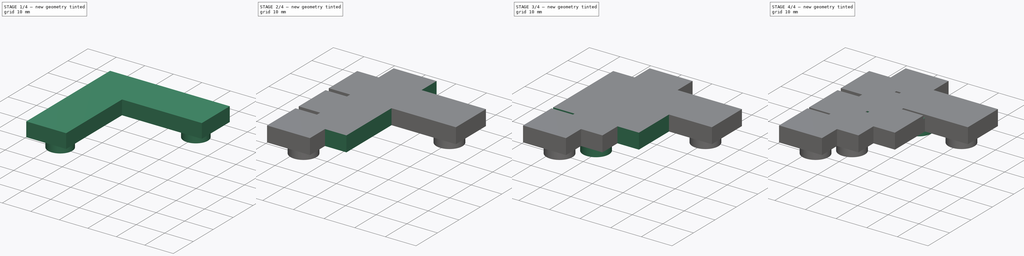
[diagram: build sequence overview — one tinted view per stage of 4, left to right]
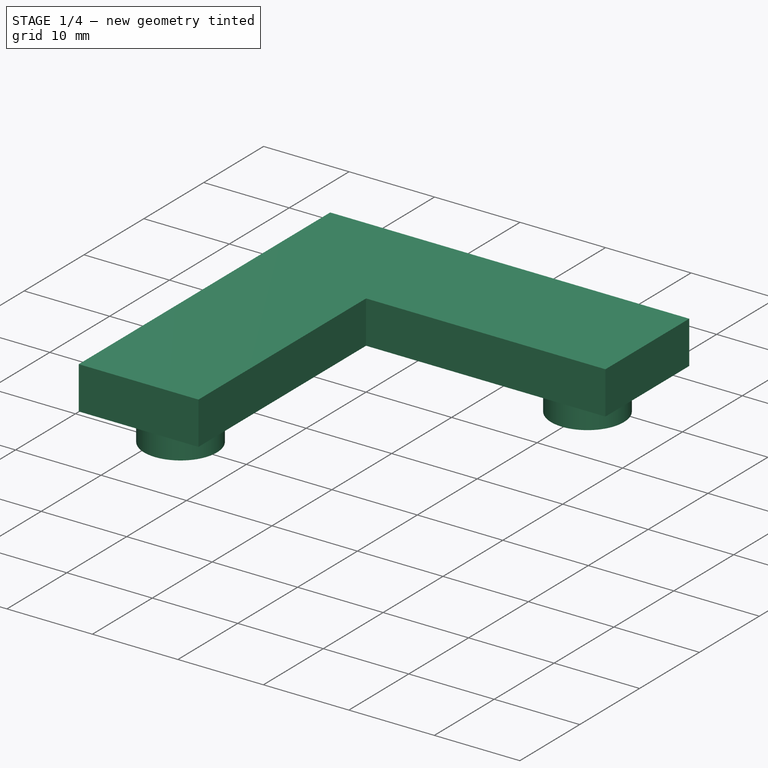
[diagram: stage 1 of 4 — iso view after this stage's code; geometry added in this stage tinted green]
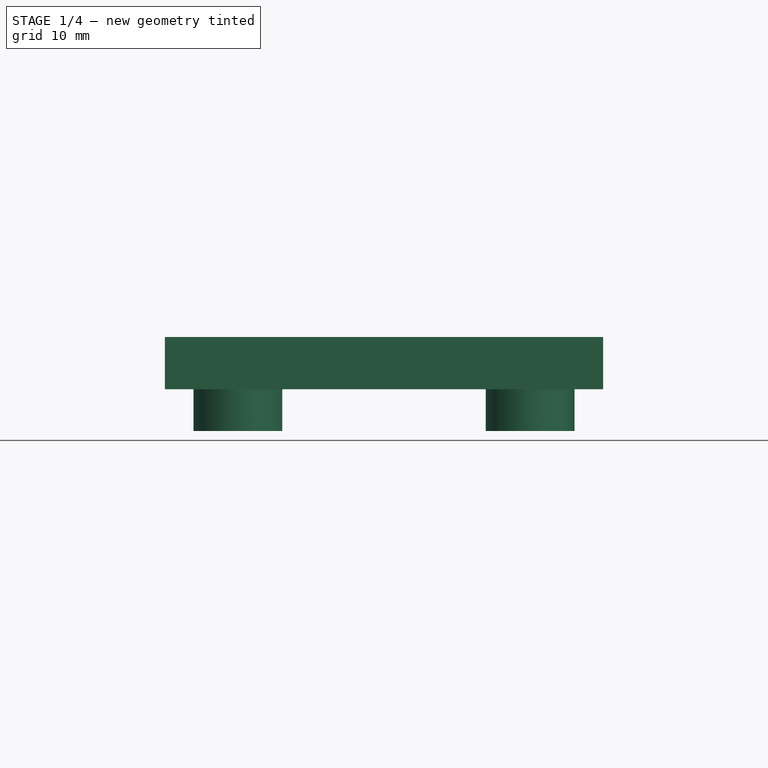
[diagram: stage 1 of 4 — front view after this stage's code; geometry added in this stage tinted green]
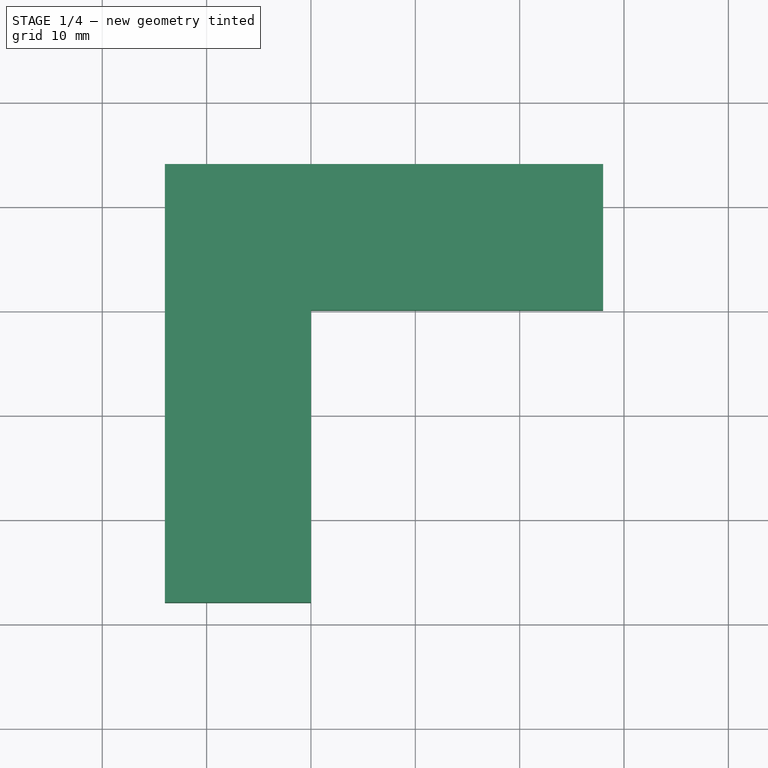
[diagram: stage 1 of 4 — top view after this stage's code; geometry added in this stage tinted green]
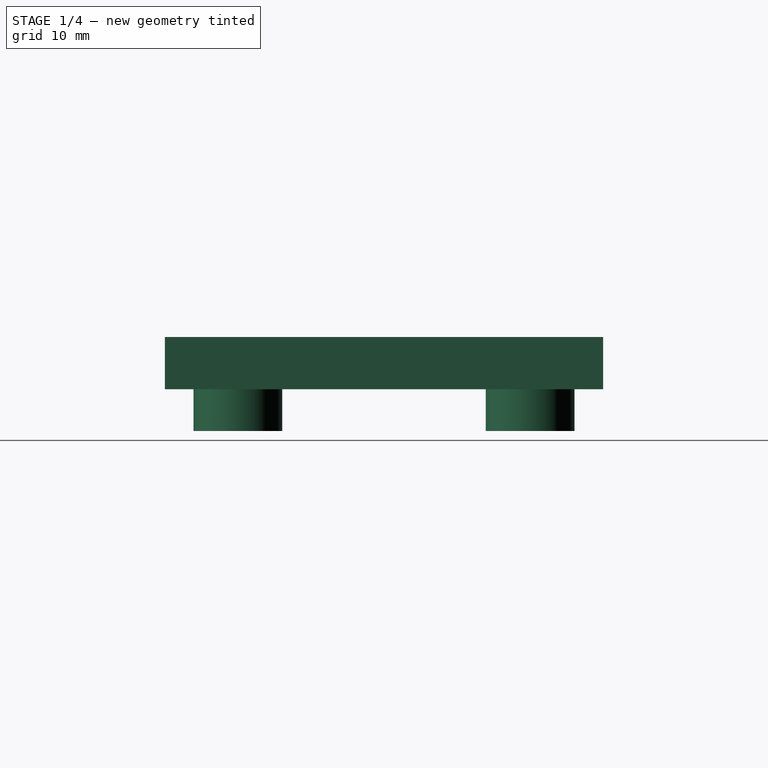
[diagram: stage 1 of 4 — right view after this stage's code; geometry added in this stage tinted green]
FCSTD DOCUMENT  (FreeCAD 0.20R)
Label: pieces
License: All rights reserved
LicenseURL: http://en.wikipedia.org/wiki/All_rights_reserved
objects: Sketcher::SketchObject×14, PartDesign::Pad×10, PartDesign::Body×5, App::Part×5, PartDesign::Pocket×4
note: 47 computed .brp shape members not serialized (recipe doc carries the construction recipe); baked Part::Feature solids carry a one-line shape summary decoded from their .brp

FEATURE [PartDesign::Body] Body002
  Group = -> [Sketch006,Pad004,Sketch007,Pad005,Sketch008,Pocket001]
  Origin = -> Origin005
  Tip = -> Pocket001
FEATURE [App::Part] Part002  label="straight"
  Group = -> [Body002]
  Origin = -> Origin004
FEATURE [Sketcher::SketchObject] Sketch009
  FullyConstrained = true
  MapMode = 5
  Support = -> [XY_Plane007]
  sketch-geometry (6):
    g0: LineSegment StartX=-14 StartY=14 StartZ=0 EndX=-14 EndY=-28 EndZ=0
    g1: LineSegment StartX=-14 StartY=-28 StartZ=0 EndX=0 EndY=-28 EndZ=0
    g2: LineSegment StartX=0 StartY=-28 StartZ=0 EndX=0 EndY=0 EndZ=0
    g3: LineSegment StartX=0 StartY=0 StartZ=0 EndX=28 EndY=0 EndZ=0
    g4: LineSegment StartX=28 StartY=0 StartZ=0 EndX=28 EndY=14 EndZ=0
    g5: LineSegment StartX=28 StartY=14 StartZ=0 EndX=-14 EndY=14 EndZ=0
  constraints (17):
    c: Vertical(g0)
    c: Coincident(g0,g1)
    c: Horizontal(g1)
    c: Coincident(g1,g2)
    c: Vertical(g2)
    c: Coincident(g2,g3)
    c: Horizontal(g3)
    c: Coincident(g3,g4)
    c: Vertical(g4)
    c: Coincident(g4,g5)
    c: Coincident(g5,g0)
    c: Horizontal(g5)
    c: Equal(g1,g4)
    c: Equal(g3,g2)
    c: Distance(g1) = 14
    c: Distance(g2) = 28
    c: Coincident(g2,g-1)
FEATURE [PartDesign::Pad] Pad006
  Direction = (1,1,1)
  Length = 5
  Length2 = 100
  Profile = -> Sketch009
  Type = 0
FEATURE [Sketcher::SketchObject] Sketch011
  FullyConstrained = true
  MapMode = 5
  Support = -> [XY_Plane009]
  sketch-geometry (6):
    g0: LineSegment StartX=-14 StartY=14 StartZ=0 EndX=-14 EndY=-28 EndZ=0
    g1: LineSegment StartX=-14 StartY=-28 StartZ=0 EndX=0 EndY=-28 EndZ=0
    g2: LineSegment StartX=0 StartY=-28 StartZ=0 EndX=0 EndY=0 EndZ=0
    g3: LineSegment StartX=0 StartY=0 StartZ=0 EndX=28 EndY=0 EndZ=0
    g4: LineSegment StartX=28 StartY=0 StartZ=0 EndX=28 EndY=14 EndZ=0
    g5: LineSegment StartX=28 StartY=14 StartZ=0 EndX=-14 EndY=14 EndZ=0
  constraints (17):
    c: Vertical(g0)
    c: Coincident(g0,g1)
    c: Horizontal(g1)
    c: Coincident(g1,g2)
    c: Vertical(g2)
    c: Coincident(g2,g3)
    c: Horizontal(g3)
    c: Coincident(g3,g4)
    c: Vertical(g4)
    c: Coincident(g4,g5)
    c: Coincident(g5,g0)
    c: Horizontal(g5)
    c: Equal(g1,g4)
    c: Equal(g3,g2)
    c: Distance(g1) = 14
    c: Distance(g2) = 28
    c: Coincident(g2,g-1)
FEATURE [PartDesign::Pad] Pad008
  Direction = (1,1,1)
  Length = 5
  Length2 = 100
  Profile = -> Sketch011
  Type = 0
FEATURE [Sketcher::SketchObject] Sketch012
  ExternalGeometry = -> [Pad008]
  FullyConstrained = true
  MapMode = 5
  Placement = pos=(0,0,0) rot=(1,0,0;3.14159rad)
  Support = -> [Pad008]
  sketch-geometry (2):
    g0: Circle CenterX=21 CenterY=-7 CenterZ=0 NormalX=0 NormalY=0 NormalZ=1 AngleXU=0 Radius=4.25
    g1: Circle CenterX=-7 CenterY=21 CenterZ=0 NormalX=0 NormalY=0 NormalZ=1 AngleXU=0 Radius=4.25
  constraints (6):
    c: Diameter(g0) = 8.5
    c: Diameter(g1) = 8.5
    c: DistanceX(g0,g-6) = 7
    c: DistanceX(g1,g-4) = 7
    c: DistanceY(g1,g-3) = 7
    c: DistanceY(g0,g-6) = 7
FEATURE [PartDesign::Pad] Pad009
  BaseFeature = -> Pad008
  Direction = (1,1,1)
  Length = 4
  Length2 = 100
  Profile = -> Sketch012
  Type = 0
FEATURE [PartDesign::Body] Body003
  Group = -> [Sketch009,Pad006,Sketch010,Pad007,Sketch013,Pocket002]
  Origin = -> Origin007
  Tip = -> Pocket002
FEATURE [App::Part] Part003  label="gay_3"
  Group = -> [Body003]
  Origin = -> Origin006
FEATURE [Sketcher::SketchObject] Sketch014
  ExternalGeometry = -> [Pad009]
  FullyConstrained = true
  MapMode = 5
  Placement = pos=(0,0,5) rot=(0,0,1;0rad)
  Support = -> [Pad009]
  sketch-geometry (14):
    g0: LineSegment StartX=0.75 StartY=14 StartZ=0 EndX=-0.75 EndY=14 EndZ=0
    g1: LineSegment StartX=-0.75 StartY=14 StartZ=0 EndX=-0.75 EndY=0.75 EndZ=0
    g2: LineSegment StartX=-0.75 StartY=0.75 StartZ=0 EndX=-14 EndY=0.75 EndZ=0
    g3: LineSegment StartX=-14 StartY=0.75 StartZ=0 EndX=-14 EndY=-0.75 EndZ=0
    g4: LineSegment StartX=-14 StartY=-0.75 StartZ=0 EndX=0.75 EndY=-0.75 EndZ=0
    g5: LineSegment StartX=0.75 StartY=-0.75 StartZ=0 EndX=0.75 EndY=14 EndZ=0
    g6: LineSegment StartX=16.25 StartY=14 StartZ=0 EndX=14.75 EndY=14 EndZ=0
    g7: LineSegment StartX=14.75 StartY=14 StartZ=0 EndX=14.75 EndY=0 EndZ=0
    g8: LineSegment StartX=14.75 StartY=0 StartZ=0 EndX=16.25 EndY=0 EndZ=0
    g9: LineSegment StartX=16.25 StartY=0 StartZ=0 EndX=16.25 EndY=14 EndZ=0
    g10: LineSegment StartX=-14 StartY=-13.25 StartZ=0 EndX=0 EndY=-13.25 EndZ=0
    g11: LineSegment StartX=0 StartY=-13.25 StartZ=0 EndX=0 EndY=-14.75 EndZ=0
    g12: LineSegment StartX=0 StartY=-14.75 StartZ=0 EndX=-14 EndY=-14.75 EndZ=0
    g13: LineSegment StartX=-14 StartY=-14.75 StartZ=0 EndX=-14 EndY=-13.25 EndZ=0
  constraints (42):
    c: Horizontal(g0)
    c: Coincident(g0,g1)
    c: Coincident(g1,g2)
    c: Horizontal(g2)
    c: Coincident(g2,g3)
    c: Coincident(g3,g4)
    c: Coincident(g4,g5)
    c: Coincident(g5,g0)
    c: Vertical(g5)
    c: Coincident(g6,g7)
    c: Coincident(g7,g8)
    c: Coincident(g8,g9)
    c: Coincident(g9,g6)
    c: Horizontal(g6)
    c: Horizontal(g8)
    c: Vertical(g7)
    c: Vertical(g9)
    c: Coincident(g10,g11)
    c: Coincident(g11,g12)
    c: Coincident(g12,g13)
    c: Coincident(g13,g10)
    c: Horizontal(g10)
    c: Horizontal(g12)
    c: Vertical(g11)
    c: Vertical(g13)
    c: Horizontal(g4)
    c: Vertical(g3)
    c: Vertical(g1)
    c: Equal(g0,g6)
    c: Equal(g0,g3)
    c: Equal(g3,g13)
    c: Equal(g4,g5)
    c: Distance(g5) = 14.75
    c: PointOnObject(g3,g-3)
    c: Distance(g0) = 1.5
    c: PointOnObject(g0,g-4)
    c: PointOnObject(g11,g-2)
    c: PointOnObject(g12,g-3)
    c: PointOnObject(g7,g-1)
    c: PointOnObject(g6,g-4)
    c: DistanceY(g-3,g12) = 13.25
    c: DistanceX(g6,g-4) = 13.25
FEATURE [PartDesign::Pocket] Pocket003
  BaseFeature = -> Pad009
  Direction = (1,1,1)
  Length = 1
  Length2 = 100
  Profile = -> Sketch014
  Type = 0
FEATURE [PartDesign::Body] Body004
  Group = -> [Sketch011,Pad008,Sketch012,Pad009,Sketch014,Pocket003]
  Origin = -> Origin009
  Tip = -> Pocket003
FEATURE [App::Part] Part004  label="gay_2"
  Group = -> [Body004]
  Origin = -> Origin008
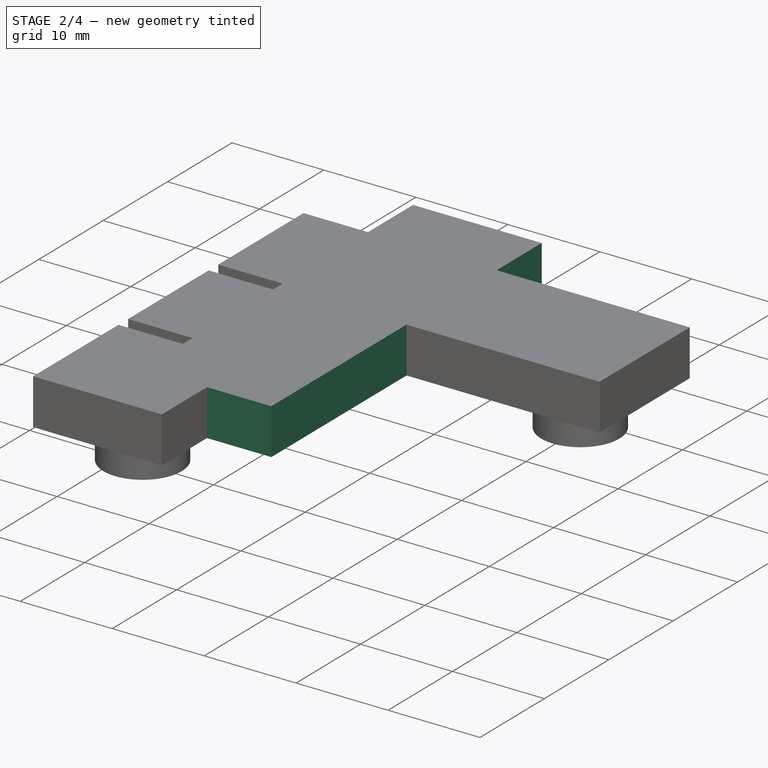
[diagram: stage 2 of 4 — iso view after this stage's code; geometry added in this stage tinted green]
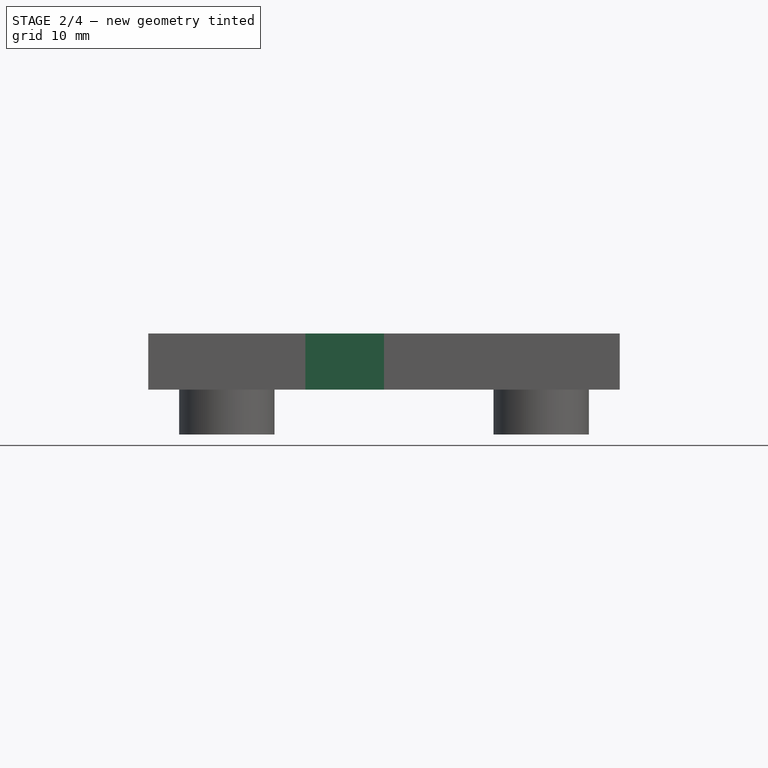
[diagram: stage 2 of 4 — front view after this stage's code; geometry added in this stage tinted green]
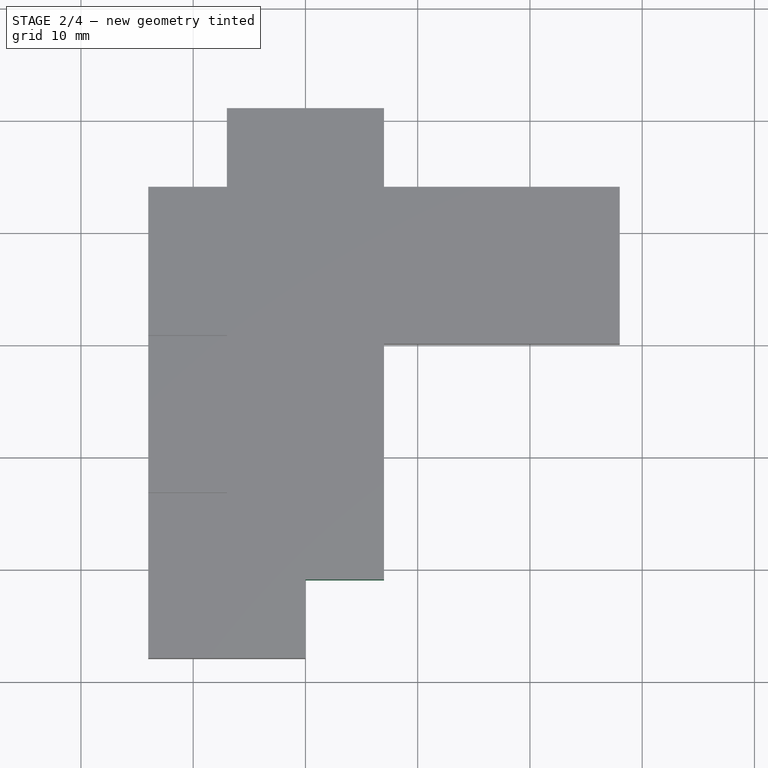
[diagram: stage 2 of 4 — top view after this stage's code; geometry added in this stage tinted green]
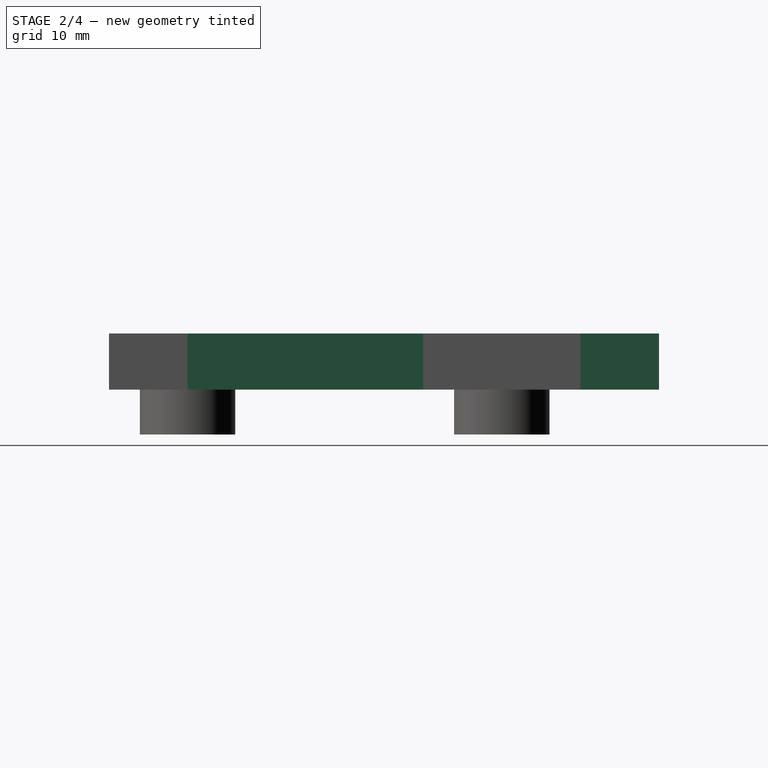
[diagram: stage 2 of 4 — right view after this stage's code; geometry added in this stage tinted green]
FEATURE [PartDesign::Body] Body001
  Group = -> [Sketch003,Pad002,Sketch004,Pad003,Sketch005,Pocket]
  Origin = -> Origin003
  Tip = -> Pocket
FEATURE [App::Part] Part001  label="foursquare"
  Group = -> [Body001]
  Origin = -> Origin002
FEATURE [Sketcher::SketchObject] Sketch006
  FullyConstrained = true
  MapMode = 5
  Support = -> [XY_Plane005]
  sketch-geometry (4):
    g0: LineSegment StartX=-7 StartY=21 StartZ=0 EndX=7 EndY=21 EndZ=0
    g1: LineSegment StartX=7 StartY=21 StartZ=0 EndX=7 EndY=-21 EndZ=0
    g2: LineSegment StartX=7 StartY=-21 StartZ=0 EndX=-7 EndY=-21 EndZ=0
    g3: LineSegment StartX=-7 StartY=-21 StartZ=0 EndX=-7 EndY=21 EndZ=0
  constraints (11):
    c: Coincident(g0,g1)
    c: Coincident(g1,g2)
    c: Coincident(g2,g3)
    c: Coincident(g3,g0)
    c: Horizontal(g0)
    c: Horizontal(g2)
    c: Vertical(g1)
    c: Vertical(g3)
    c: Symmetric(g0,g1,g-1)
    c: Distance(g0) = 14
    c: Distance(g3) = 42
FEATURE [PartDesign::Pad] Pad004
  Direction = (1,1,1)
  Length = 5
  Length2 = 100
  Profile = -> Sketch006
  Type = 0
FEATURE [Sketcher::SketchObject] Sketch010
  ExternalGeometry = -> [Pad006]
  FullyConstrained = true
  MapMode = 5
  Placement = pos=(0,0,0) rot=(1,0,0;3.14159rad)
  Support = -> [Pad006]
  sketch-geometry (3):
    g0: Circle CenterX=21 CenterY=-7 CenterZ=0 NormalX=0 NormalY=0 NormalZ=1 AngleXU=0 Radius=4.25
    g1: Circle CenterX=-7 CenterY=21 CenterZ=0 NormalX=0 NormalY=0 NormalZ=1 AngleXU=0 Radius=4.25
    g2: Circle CenterX=-7 CenterY=-7 CenterZ=0 NormalX=0 NormalY=0 NormalZ=1 AngleXU=0 Radius=4.25
  constraints (9):
    c: Diameter(g0) = 8.5
    c: Diameter(g1) = 8.5
    c: DistanceX(g0,g-6) = 7
    c: DistanceX(g1,g-4) = 7
    c: DistanceY(g1,g-3) = 7
    c: DistanceY(g0,g-6) = 7
    c: Diameter(g2) = 8.5
    c: DistanceX(g2,g-1) = 7
    c: DistanceY(g2,g-1) = 7
FEATURE [PartDesign::Pad] Pad007
  BaseFeature = -> Pad006
  Direction = (1,1,1)
  Length = 4
  Length2 = 100
  Profile = -> Sketch010
  Type = 0
FEATURE [Sketcher::SketchObject] Sketch013
  ExternalGeometry = -> [Pad007]
  FullyConstrained = true
  MapMode = 5
  Placement = pos=(0,0,5) rot=(0,0,1;0rad)
  Support = -> [Pad007]
  sketch-geometry (14):
    g0: LineSegment StartX=13.25 StartY=14 StartZ=0 EndX=14.75 EndY=14 EndZ=0
    g1: LineSegment StartX=14.75 StartY=14 StartZ=0 EndX=14.75 EndY=0 EndZ=0
    g2: LineSegment StartX=14.75 StartY=0 StartZ=0 EndX=13.25 EndY=0 EndZ=0
    g3: LineSegment StartX=13.25 StartY=0 StartZ=0 EndX=13.25 EndY=14 EndZ=0
    g4: LineSegment StartX=-14 StartY=-13.25 StartZ=0 EndX=0 EndY=-13.25 EndZ=0
    g5: LineSegment StartX=0 StartY=-13.25 StartZ=0 EndX=0 EndY=-14.75 EndZ=0
    g6: LineSegment StartX=0 StartY=-14.75 StartZ=0 EndX=-14 EndY=-14.75 EndZ=0
    g7: LineSegment StartX=-14 StartY=-14.75 StartZ=0 EndX=-14 EndY=-13.25 EndZ=0
    g8: LineSegment StartX=0.75 StartY=14 StartZ=0 EndX=-0.75 EndY=14 EndZ=0
    g9: LineSegment StartX=-0.75 StartY=14 StartZ=0 EndX=-0.75 EndY=0.75 EndZ=0
    g10: LineSegment StartX=-0.75 StartY=0.75 StartZ=0 EndX=-14 EndY=0.75 EndZ=0
    g11: LineSegment StartX=-14 StartY=0.75 StartZ=0 EndX=-14 EndY=-0.75 EndZ=0
    g12: LineSegment StartX=-14 StartY=-0.75 StartZ=0 EndX=0.75 EndY=-0.75 EndZ=0
    g13: LineSegment StartX=0.75 StartY=-0.75 StartZ=0 EndX=0.75 EndY=14 EndZ=0
  constraints (42):
    c: Coincident(g0,g1)
    c: Coincident(g1,g2)
    c: Coincident(g2,g3)
    c: Coincident(g3,g0)
    c: Horizontal(g0)
    c: Horizontal(g2)
    c: Vertical(g1)
    c: Vertical(g3)
    c: Coincident(g4,g5)
    c: Coincident(g5,g6)
    c: Coincident(g6,g7)
    c: Coincident(g7,g4)
    c: Horizontal(g4)
    c: Horizontal(g6)
    c: Vertical(g5)
    c: Vertical(g7)
    c: Horizontal(g8)
    c: Coincident(g8,g9)
    c: Vertical(g9)
    c: Coincident(g9,g10)
    c: Horizontal(g10)
    c: Coincident(g10,g11)
    c: Coincident(g11,g12)
    c: Horizontal(g12)
    c: Coincident(g12,g13)
    c: Coincident(g13,g8)
    c: Vertical(g13)
    c: Distance(g13) = 14.75
    c: Equal(g12,g13)
    c: Vertical(g11)
    c: Equal(g7,g11)
    c: Equal(g8,g0)
    c: Equal(g8,g11)
    c: Distance(g8) = 1.5
    c: PointOnObject(g11,g-4)
    c: PointOnObject(g8,g-3)
    c: PointOnObject(g4,g-4)
    c: PointOnObject(g4,g-2)
    c: PointOnObject(g2,g-1)
    c: PointOnObject(g0,g-3)
    c: DistanceY(g-4,g6) = 13.25
    c: DistanceX(g1,g-3) = 13.25
FEATURE [PartDesign::Pocket] Pocket002
  BaseFeature = -> Pad007
  Direction = (1,1,1)
  Length = 1
  Length2 = 100
  Profile = -> Sketch013
  Type = 0
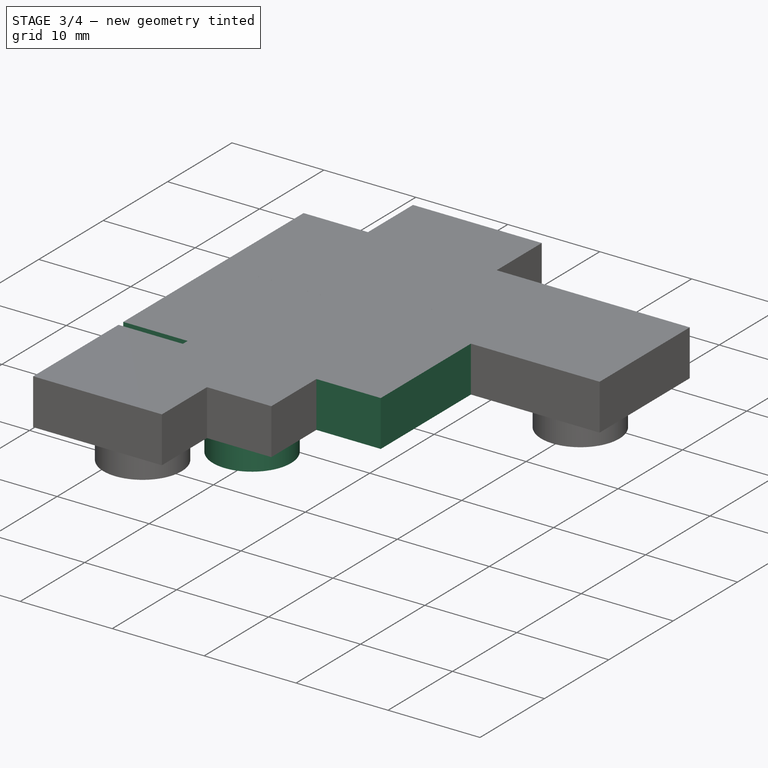
[diagram: stage 3 of 4 — iso view after this stage's code; geometry added in this stage tinted green]
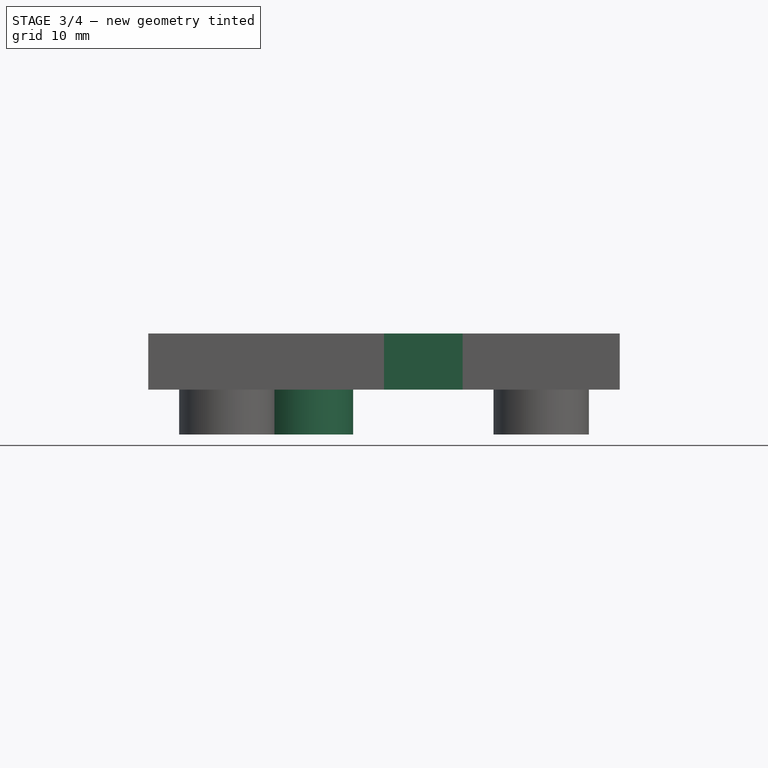
[diagram: stage 3 of 4 — front view after this stage's code; geometry added in this stage tinted green]
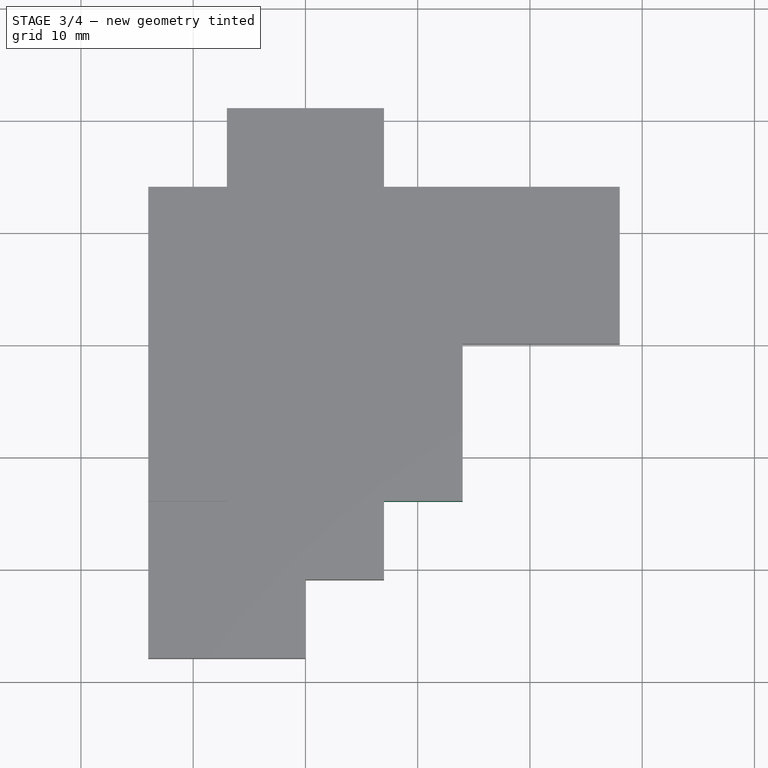
[diagram: stage 3 of 4 — top view after this stage's code; geometry added in this stage tinted green]
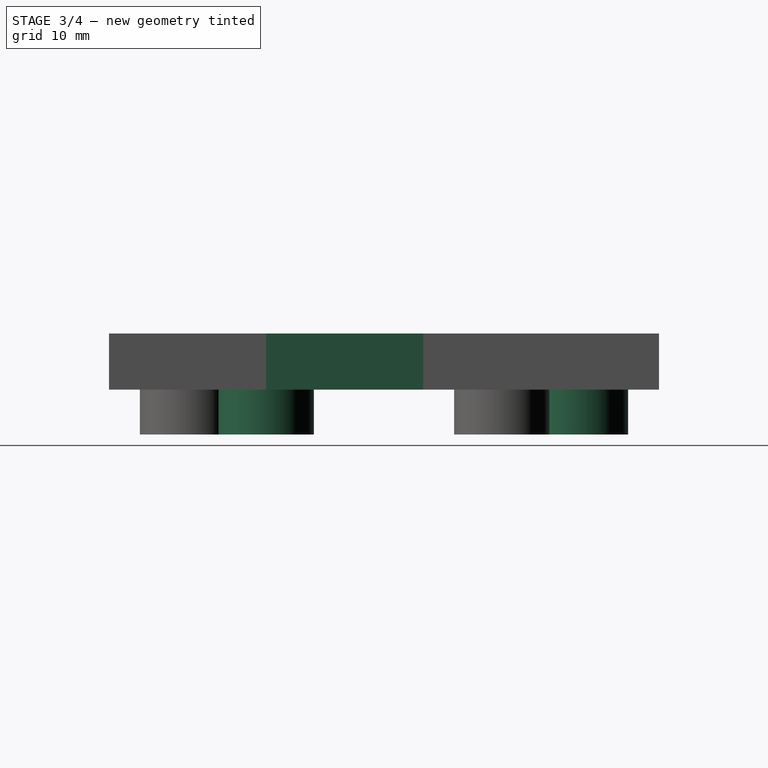
[diagram: stage 3 of 4 — right view after this stage's code; geometry added in this stage tinted green]
FEATURE [PartDesign::Body] Body
  Group = -> [Sketch,Pad,Sketch002,Pad001]
  Origin = -> Origin001
  Tip = -> Pad001
FEATURE [App::Part] Part  label="single"
  Group = -> [Body]
  Origin = -> Origin
FEATURE [Sketcher::SketchObject] Sketch003
  FullyConstrained = true
  MapMode = 5
  Support = -> [XY_Plane003]
  sketch-geometry (4):
    g0: LineSegment StartX=-14 StartY=14 StartZ=0 EndX=14 EndY=14 EndZ=0
    g1: LineSegment StartX=14 StartY=14 StartZ=0 EndX=14 EndY=-14 EndZ=0
    g2: LineSegment StartX=14 StartY=-14 StartZ=0 EndX=-14 EndY=-14 EndZ=0
    g3: LineSegment StartX=-14 StartY=-14 StartZ=0 EndX=-14 EndY=14 EndZ=0
  constraints (11):
    c: Coincident(g0,g1)
    c: Coincident(g1,g2)
    c: Coincident(g2,g3)
    c: Coincident(g3,g0)
    c: Horizontal(g0)
    c: Horizontal(g2)
    c: Vertical(g1)
    c: Vertical(g3)
    c: Equal(g0,g3)
    c: Symmetric(g0,g1,g-1)
    c: DistanceX(g0,g0) = 28
FEATURE [PartDesign::Pad] Pad002
  Direction = (1,1,1)
  Length = 5
  Length2 = 100
  Profile = -> Sketch003
  Type = 0
FEATURE [Sketcher::SketchObject] Sketch007
  ExternalGeometry = -> [Pad004]
  FullyConstrained = true
  MapMode = 5
  Placement = pos=(0,0,0) rot=(1,0,0;3.14159rad)
  Support = -> [Pad004]
  sketch-geometry (2):
    g0: Circle CenterX=0 CenterY=14 CenterZ=0 NormalX=0 NormalY=0 NormalZ=1 AngleXU=0 Radius=4.25
    g1: Circle CenterX=0 CenterY=-14 CenterZ=0 NormalX=0 NormalY=0 NormalZ=1 AngleXU=0 Radius=4.25
  constraints (6):
    c: DistanceX(g0,g-1) = 0
    c: DistanceX(g1,g-1) = 0
    c: Diameter(g0) = 8.5
    c: Diameter(g1) = 8.5
    c: DistanceY(g0,g-3) = 7
    c: DistanceY(g-4,g1) = 7
FEATURE [PartDesign::Pad] Pad005
  BaseFeature = -> Pad004
  Direction = (0,0,-1)
  Length = 4
  Length2 = 100
  Profile = -> Sketch007
  Type = 0
FEATURE [Sketcher::SketchObject] Sketch008
  ExternalGeometry = -> [Pad005]
  FullyConstrained = true
  MapMode = 5
  Placement = pos=(0,0,5) rot=(0,0,1;0rad)
  Support = -> [Pad005]
  sketch-geometry (8):
    g0: LineSegment StartX=-7 StartY=7.75 StartZ=0 EndX=7 EndY=7.75 EndZ=0
    g1: LineSegment StartX=7 StartY=7.75 StartZ=0 EndX=7 EndY=6.25 EndZ=0
    g2: LineSegment StartX=7 StartY=6.25 StartZ=0 EndX=-7 EndY=6.25 EndZ=0
    g3: LineSegment StartX=-7 StartY=6.25 StartZ=0 EndX=-7 EndY=7.75 EndZ=0
    g4: LineSegment StartX=-7 StartY=-6.25 StartZ=0 EndX=7 EndY=-6.25 EndZ=0
    g5: LineSegment StartX=7 StartY=-6.25 StartZ=0 EndX=7 EndY=-7.75 EndZ=0
    g6: LineSegment StartX=7 StartY=-7.75 StartZ=0 EndX=-7 EndY=-7.75 EndZ=0
    g7: LineSegment StartX=-7 StartY=-7.75 StartZ=0 EndX=-7 EndY=-6.25 EndZ=0
  constraints (24):
    c: Coincident(g0,g1)
    c: Coincident(g1,g2)
    c: Coincident(g2,g3)
    c: Coincident(g3,g0)
    c: Horizontal(g0)
    c: Horizontal(g2)
    c: Vertical(g1)
    c: Vertical(g3)
    c: Coincident(g4,g5)
    c: Coincident(g5,g6)
    c: Coincident(g6,g7)
    c: Coincident(g7,g4)
    c: Horizontal(g4)
    c: Horizontal(g6)
    c: Vertical(g5)
    c: Vertical(g7)
    c: PointOnObject(g2,g-3)
    c: PointOnObject(g4,g-3)
    c: PointOnObject(g1,g-6)
    c: PointOnObject(g5,g-6)
    c: Equal(g7,g3)
    c: Distance(g3) = 1.5
    c: DistanceY(g-1,g1) = 6.25
    c: DistanceY(g4,g-1) = 6.25
FEATURE [PartDesign::Pocket] Pocket001
  BaseFeature = -> Pad005
  Direction = (0,0,-1)
  Length = 1
  Length2 = 100
  Profile = -> Sketch008
  Type = 0
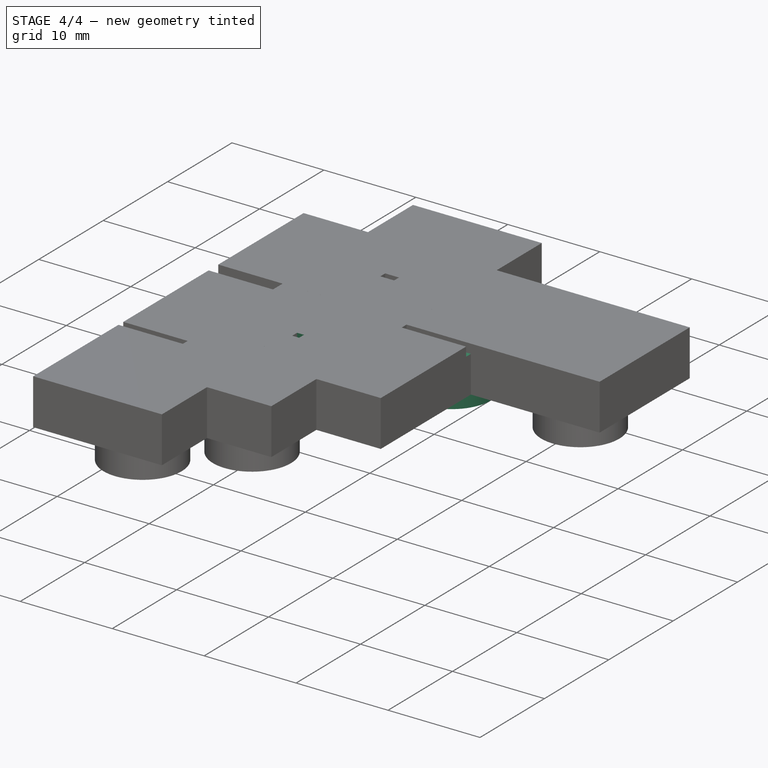
[diagram: stage 4 of 4 — iso view after this stage's code; geometry added in this stage tinted green]
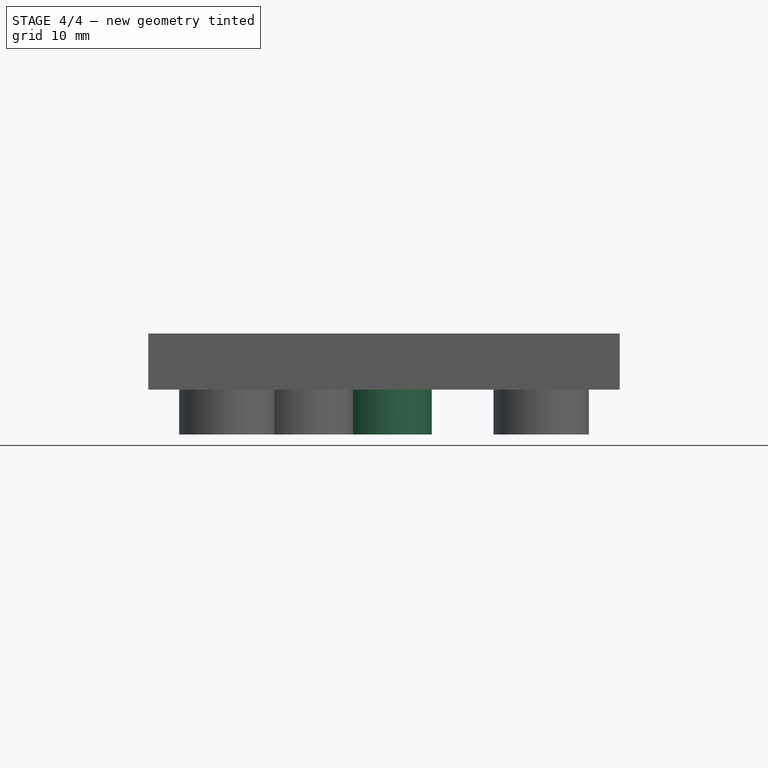
[diagram: stage 4 of 4 — front view after this stage's code; geometry added in this stage tinted green]
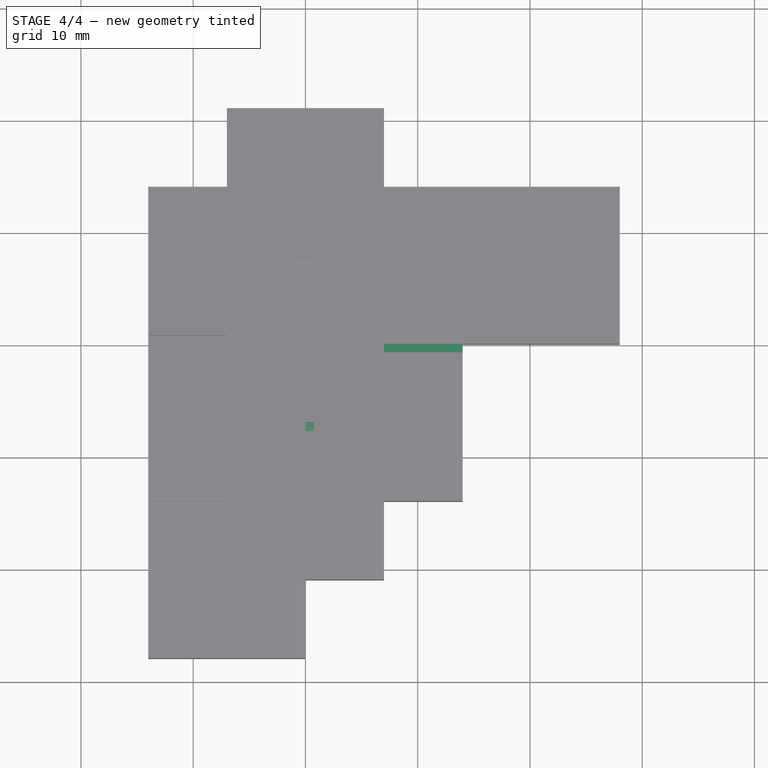
[diagram: stage 4 of 4 — top view after this stage's code; geometry added in this stage tinted green]
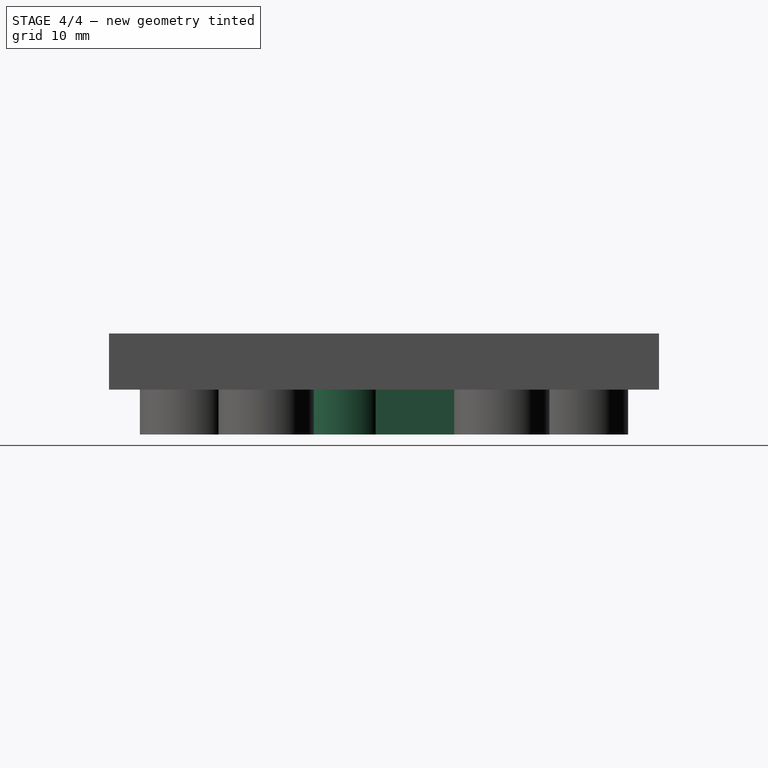
[diagram: stage 4 of 4 — right view after this stage's code; geometry added in this stage tinted green]
FEATURE [Sketcher::SketchObject] Sketch
  FullyConstrained = true
  MapMode = 5
  Support = -> [XY_Plane001]
  sketch-geometry (4):
    g0: LineSegment StartX=-7 StartY=7 StartZ=0 EndX=7 EndY=7 EndZ=0
    g1: LineSegment StartX=7 StartY=7 StartZ=0 EndX=7 EndY=-7 EndZ=0
    g2: LineSegment StartX=7 StartY=-7 StartZ=0 EndX=-7 EndY=-7 EndZ=0
    g3: LineSegment StartX=-7 StartY=-7 StartZ=0 EndX=-7 EndY=7 EndZ=0
  constraints (11):
    c: Coincident(g0,g1)
    c: Coincident(g1,g2)
    c: Coincident(g2,g3)
    c: Coincident(g3,g0)
    c: Horizontal(g0)
    c: Horizontal(g2)
    c: Vertical(g1)
    c: Vertical(g3)
    c: Equal(g0,g3)
    c: Symmetric(g0,g1,g-1)
    c: DistanceX(g0,g0) = 14
FEATURE [PartDesign::Pad] Pad
  Direction = (1,1,1)
  Length = 5
  Length2 = 100
  Profile = -> Sketch
  Type = 0
FEATURE [Sketcher::SketchObject] Sketch002
  FullyConstrained = true
  MapMode = 5
  Placement = pos=(0,0,0) rot=(1,0,0;3.14159rad)
  Support = -> [Pad]
  sketch-geometry (4):
    g0: LineSegment StartX=-4.25 StartY=4.25 StartZ=0 EndX=4.25 EndY=4.25 EndZ=0
    g1: LineSegment StartX=4.25 StartY=4.25 StartZ=0 EndX=4.25 EndY=-4.25 EndZ=0
    g2: LineSegment StartX=4.25 StartY=-4.25 StartZ=0 EndX=-4.25 EndY=-4.25 EndZ=0
    g3: LineSegment StartX=-4.25 StartY=-4.25 StartZ=0 EndX=-4.25 EndY=4.25 EndZ=0
  constraints (11):
    c: Coincident(g0,g1)
    c: Coincident(g1,g2)
    c: Coincident(g2,g3)
    c: Coincident(g3,g0)
    c: Horizontal(g0)
    c: Horizontal(g2)
    c: Vertical(g1)
    c: Vertical(g3)
    c: Equal(g0,g3)
    c: Symmetric(g0,g1,g-1)
    c: DistanceX(g0,g0) = 8.5
FEATURE [PartDesign::Pad] Pad001
  BaseFeature = -> Pad
  Direction = (1,1,1)
  Length = 4
  Length2 = 100
  Profile = -> Sketch002
  Type = 0
FEATURE [Sketcher::SketchObject] Sketch004
  FullyConstrained = true
  MapMode = 5
  Placement = pos=(0,0,0) rot=(1,0,0;3.14159rad)
  Support = -> [Pad002]
  sketch-geometry (2):
    g0: Circle CenterX=-7 CenterY=7 CenterZ=0 NormalX=0 NormalY=0 NormalZ=1 AngleXU=0 Radius=4.25
    g1: Circle CenterX=7 CenterY=-7 CenterZ=0 NormalX=0 NormalY=0 NormalZ=1 AngleXU=0 Radius=4.25
  constraints (5):
    c: Diameter(g0) = 8.5
    c: Diameter(g1) = 8.5
    c: Symmetric(g0,g1,g-1)
    c: DistanceX(g0,g-1) = 7
    c: DistanceY(g-1,g0) = 7
FEATURE [PartDesign::Pad] Pad003
  BaseFeature = -> Pad002
  Direction = (1,1,1)
  Length = 4
  Length2 = 100
  Profile = -> Sketch004
  Type = 0
FEATURE [Sketcher::SketchObject] Sketch005
  ExternalGeometry = -> [Pad003]
  FullyConstrained = true
  MapMode = 5
  Placement = pos=(0,0,5) rot=(0,0,1;0rad)
  Support = -> [Pad003]
  sketch-geometry (12):
    g0: LineSegment StartX=-0.75 StartY=14 StartZ=0 EndX=-0.75 EndY=0.75 EndZ=0
    g1: LineSegment StartX=-0.75 StartY=0.75 StartZ=0 EndX=-14 EndY=0.75 EndZ=0
    g2: LineSegment StartX=-14 StartY=0.75 StartZ=0 EndX=-14 EndY=-0.75 EndZ=0
    g3: LineSegment StartX=-14 StartY=-0.75 StartZ=0 EndX=-0.75 EndY=-0.75 EndZ=0
    g4: LineSegment StartX=-0.75 StartY=-0.75 StartZ=0 EndX=-0.75 EndY=-14 EndZ=0
    g5: LineSegment StartX=-0.75 StartY=-14 StartZ=0 EndX=0.75 EndY=-14 EndZ=0
    g6: LineSegment StartX=0.75 StartY=-14 StartZ=0 EndX=0.75 EndY=-0.75 EndZ=0
    g7: LineSegment StartX=0.75 StartY=-0.75 StartZ=0 EndX=14 EndY=-0.75 EndZ=0
    g8: LineSegment StartX=14 StartY=-0.75 StartZ=0 EndX=14 EndY=0.75 EndZ=0
    g9: LineSegment StartX=14 StartY=0.75 StartZ=0 EndX=0.75 EndY=0.75 EndZ=0
    g10: LineSegment StartX=0.75 StartY=0.75 StartZ=0 EndX=0.75 EndY=14 EndZ=0
    g11: LineSegment StartX=0.75 StartY=14 StartZ=0 EndX=-0.75 EndY=14 EndZ=0
  constraints (35):
    c: Vertical(g0)
    c: Coincident(g0,g1)
    c: Horizontal(g1)
    c: Coincident(g1,g2)
    c: Vertical(g2)
    c: Coincident(g2,g3)
    c: Horizontal(g3)
    c: Coincident(g3,g4)
    c: Vertical(g4)
    c: Coincident(g4,g5)
    c: Coincident(g5,g6)
    c: Vertical(g6)
    c: Coincident(g6,g7)
    c: Horizontal(g7)
    c: Coincident(g7,g8)
    c: Coincident(g8,g9)
    c: Horizontal(g9)
    c: Coincident(g9,g10)
    c: Coincident(g10,g11)
    c: Coincident(g11,g0)
    c: Horizontal(g11)
    c: Horizontal(g5)
    c: Vertical(g10)
    c: Vertical(g8)
    c: Equal(g2,g11)
    c: Equal(g11,g5)
    c: Equal(g5,g8)
    c: Symmetric(g0,g6,g-1)
    c: DistanceX(g3,g0) = 0
    c: DistanceY(g3,g6) = 0
    c: Distance(g11) = 1.5
    c: PointOnObject(g1,g-5)
    c: PointOnObject(g10,g-3)
    c: PointOnObject(g8,g-4)
    c: PointOnObject(g5,g-6)
FEATURE [PartDesign::Pocket] Pocket
  BaseFeature = -> Pad003
  Direction = (1,1,1)
  Length = 1
  Length2 = 100
  Profile = -> Sketch005
  Type = 0
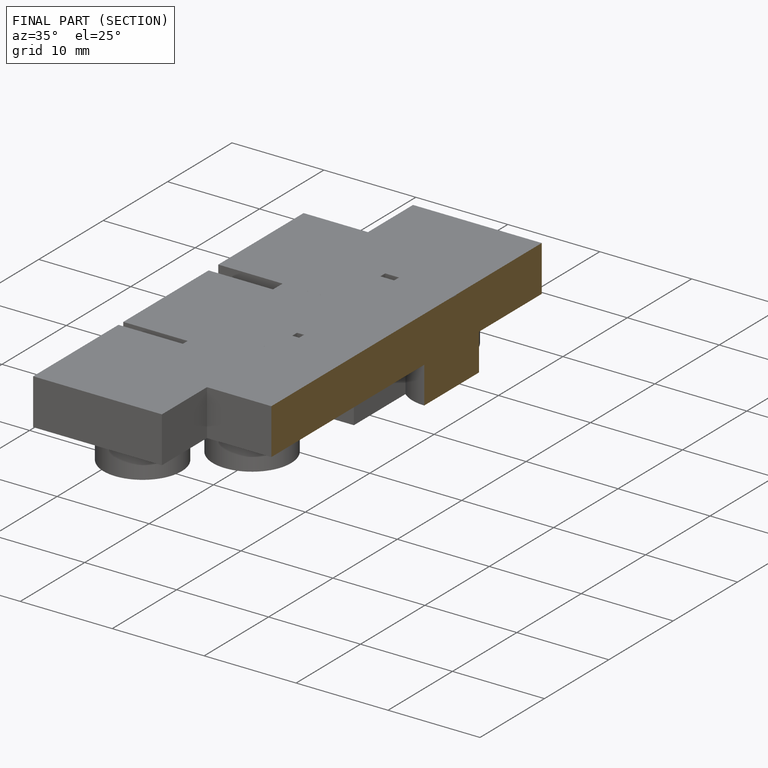
[diagram: finished part — half-section view (interior)]
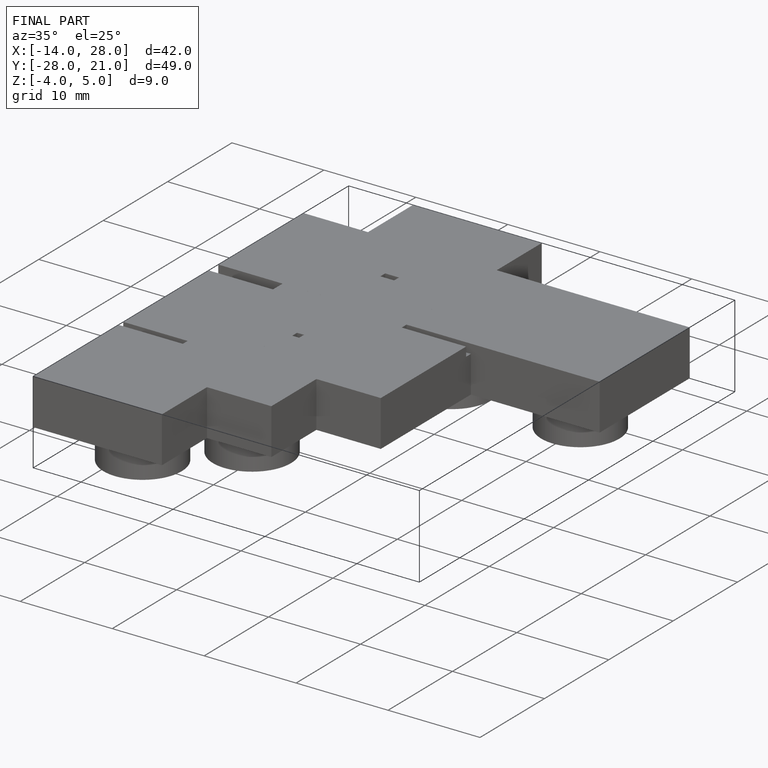
[diagram: finished part — iso view with bounding-box wireframe]
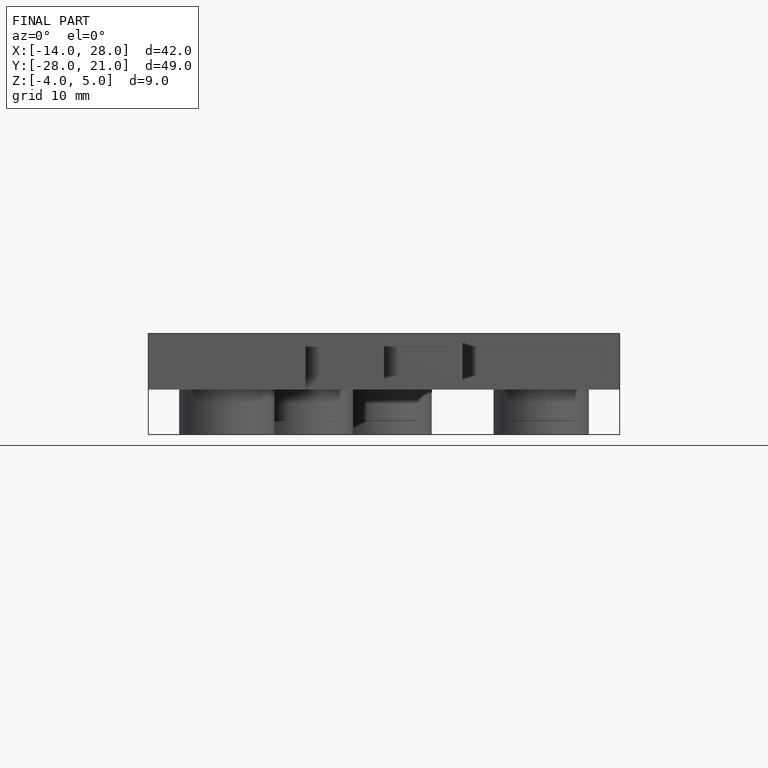
[diagram: finished part — front view with bounding-box wireframe]
